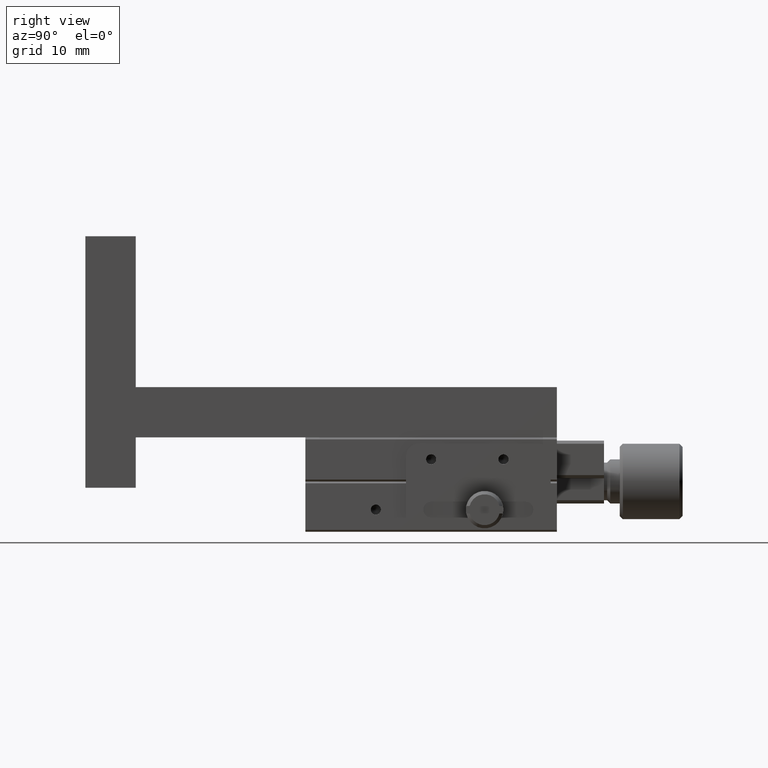
[diagram: clean part render]
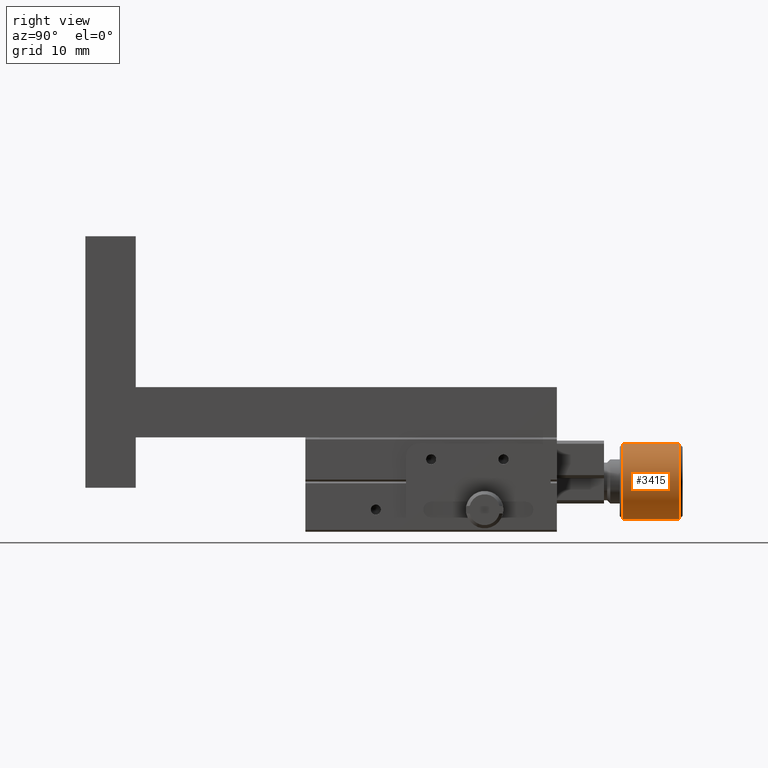
[diagram: same view with one face highlighted and labeled with its STEP entity id]
A machine part, right view. The second image highlights one B-rep face of the part: STEP entity #3415.
In plain terms, the highlighted cylindrical surface (bore or boss wall) has radius 6 mm, axis along (0, 1, 0).
Its self-contained STEP definition (entity closure, byte-faithful):
#1 = CARTESIAN_POINT ( 'NONE',  ( -5.927754503693613231, 89.49967994241787039, -6.071704361601986122 ) ) ;
#32 = CARTESIAN_POINT ( 'NONE',  ( -5.925992331156175297, 89.47290696648462927, -6.060522444643508422 ) ) ;
#75 = CARTESIAN_POINT ( 'NONE',  ( -5.912710089223574883, 89.28009788403207381, -5.980265034043830141 ) ) ;
#82 = ORIENTED_EDGE ( 'NONE', *, *, #2135, .T. ) ;
#146 = CARTESIAN_POINT ( 'NONE',  ( -5.911783107627394784, 89.13227128998488524, -5.974904639685542307 ) ) ;
#227 = CARTESIAN_POINT ( 'NONE',  ( -5.916355304785103186, 89.27785998870660933, -6.000294291334446584 ) ) ;
#273 = CARTESIAN_POINT ( 'NONE',  ( -6.001950903604411636, 87.96309026601777248, -7.067953814614329033 ) ) ;
#353 = CARTESIAN_POINT ( 'NONE',  ( -5.914852837287155829, 89.30729556507249356, -5.992767356128609002 ) ) ;
#359 = ORIENTED_EDGE ( 'NONE', *, *, #6518, .T. ) ;
#388 = CARTESIAN_POINT ( 'NONE',  ( -5.934747352070503190, 89.52856487765008353, -6.117518347447360227 ) ) ;
#425 = CARTESIAN_POINT ( 'NONE',  ( -5.978726218358333178, 89.89961184270403294, -6.478972484376608776 ) ) ;
#466 = CARTESIAN_POINT ( 'NONE',  ( -5.915505863353157423, 89.31539101887378251, -5.996607193960900695 ) ) ;
#501 = CARTESIAN_POINT ( 'NONE',  ( -5.930006737495724600, 89.53437980387064954, -6.086205643435211421 ) ) ;
#536 = CARTESIAN_POINT ( 'NONE',  ( -5.915381821390267802, 89.31773715501745414, -5.995748423078143929 ) ) ;
#578 = CARTESIAN_POINT ( 'NONE',  ( -5.924006292529298889, 89.44311410808374774, -6.048081176741863629 ) ) ;
#617 = CARTESIAN_POINT ( 'NONE',  ( -5.913879973882700369, 89.29508758438022653, -5.987071576474948920 ) ) ;
#650 = CARTESIAN_POINT ( 'NONE',  ( -5.912396572797358196, 89.27599789392749585, -5.978448496103270671 ) ) ;
#719 = CARTESIAN_POINT ( 'NONE',  ( -2.220446049250310123E-16, 85.49999999999727152, -7.000000000000000000 ) ) ;
#800 = CARTESIAN_POINT ( 'NONE',  ( -5.925698735732378708, 89.45918686169703449, -6.058672930851284555 ) ) ;
#831 = DIRECTION ( 'NONE',  ( -0.000000000000000000, -1.000000000000000000, -0.000000000000000000 ) ) ;
#839 = CARTESIAN_POINT ( 'NONE',  ( -5.925466932324986225, 89.45481081909210275, -6.057214851773834674 ) ) ;
#848 = CARTESIAN_POINT ( 'NONE',  ( -5.947418991632147822, 88.35041547480201984, -7.792595317910182118 ) ) ;
#887 = CARTESIAN_POINT ( 'NONE',  ( -5.919467705309717331, 89.29737075696777993, -7.979745929205733113 ) ) ;
#929 = CARTESIAN_POINT ( 'NONE',  ( -5.926639406699675483, 89.44336852453086806, -6.064611201671562313 ) ) ;
#1002 = CARTESIAN_POINT ( 'NONE',  ( -5.925820438914532140, 89.43442881914663189, -6.059436877808523469 ) ) ;
#1038 = CARTESIAN_POINT ( 'NONE',  ( -5.949590827058563569, 89.66950017021075325, -6.223853787383361258 ) ) ;
#1081 = CARTESIAN_POINT ( 'NONE',  ( -5.927048406265220670, 89.44780980102757439, -6.067206275644051239 ) ) ;
#1119 = CARTESIAN_POINT ( 'NONE',  ( -5.912446430450333246, 89.27694976260355020, -5.978737444603495987 ) ) ;
#1154 = CARTESIAN_POINT ( 'NONE',  ( -5.928521077930004601, 89.51143889958734690, -6.076616099046805886 ) ) ;
#1194 = CARTESIAN_POINT ( 'NONE',  ( -5.912034423530095673, 89.27123667878944957, -5.976354820491761366 ) ) ;
#1211 = CARTESIAN_POINT ( 'NONE',  ( -5.909532092605459752, 88.96720463150427349, -8.038558123177246273 ) ) ;
#1234 = CARTESIAN_POINT ( 'NONE',  ( -5.911775984225942970, 89.26766817204126880, -5.974863474232582128 ) ) ;
#1266 = CARTESIAN_POINT ( 'NONE',  ( -5.930032393389730316, 89.53478575168824705, -6.086372155849561594 ) ) ;
#1385 = EDGE_LOOP ( 'NONE', ( #82 ) ) ;
#1417 = CARTESIAN_POINT ( 'NONE',  ( -5.924764114408938021, 89.44134967232197653, -6.052809243971579711 ) ) ;
#1426 = CARTESIAN_POINT ( 'NONE',  ( -5.986625839027112761, 88.05313620724899693, -6.574534434622240298 ) ) ;
#1459 = CARTESIAN_POINT ( 'NONE',  ( -5.924527685702791757, 89.43676609616515805, -6.051331616769585864 ) ) ;
#1505 = CARTESIAN_POINT ( 'NONE',  ( -5.996663716657913312, 90.00471007296381742, -6.799939335904366722 ) ) ;
#1548 = CARTESIAN_POINT ( 'NONE',  ( -5.957675499461705826, 89.73864960324485196, -6.287975515588263953 ) ) ;
#1587 = CARTESIAN_POINT ( 'NONE',  ( -5.953103375691772392, 89.70002839212776280, -6.251257746428968254 ) ) ;
#1621 = CARTESIAN_POINT ( 'NONE',  ( -5.919139929603875139, 89.35894752432898258, -6.018275754720846749 ) ) ;
#1659 = CARTESIAN_POINT ( 'NONE',  ( -5.964768988712976672, 89.79378365724051037, -6.350745880807933119 ) ) ;
#1697 = CARTESIAN_POINT ( 'NONE',  ( -5.911680128088103281, 89.26633338544893093, -5.974309999410310823 ) ) ;
#1731 = B_SPLINE_CURVE_WITH_KNOTS ( 'NONE', 3,
 ( #3582, #3009, #3231, #6668, #7108, #5565, #2482, #1426, #1786, #7029, #273, #4804, #7141, #4126, #1898, #848, #2620, #4948, #7290, #1211, #3808, #887, #3549, #7442, #5027, #4528, #4989, #6751, #2659, #5137, #6826, #2731, #6322, #2090, #7479, #4489, #1505, #3886, #425, #1659, #7368, #1548, #7332, #1587, #6209, #2125, #3921, #1038, #5753, #3382, #2696, #6249, #6861, #3309, #388, #2206, #3994, #4447, #4564, #4412, #6175, #1081, #929, #2243, #1002, #3270, #5676, #2771, #3423, #1621, #3953, #6897, #6284, #5718, #466, #5603, #353, #5868, #4604, #6363, #617, #2390, #2844, #4145, #75, #1769, #650, #1810, #5252, #6940, #6473, #1234, #1697, #7053, #1194, #2959, #3568, #5904, #2993, #1119, #3457, #4717, #4680, #536, #5787, #5212, #5286, #3494, #578, #4108, #6434, #3532, #32, #2886, #4645, #2431, #5827, #7515, #1, #3606, #1154, #5324, #2356, #4753, #7550, #2922, #2320, #7093, #4180, #1851, #7012, #6981, #6509, #1266, #501, #5170, #2281, #1733, #4069, #6398, #2578, #3649, #3720, #3066, #6656, #800, #839, #2038, #6014, #6701, #6086, #6621, #1417, #4366, #5402, #4253, #1459, #227, #146, #5942 ),
 .UNSPECIFIED., .T., .F.,
 ( 4, 3, 3, 3, 3, 3, 3, 3, 3, 3, 3, 3, 3, 3, 3, 3, 3, 3, 3, 3, 3, 3, 3, 3, 3, 3, 3, 3, 3, 3, 3, 3, 3, 3, 3, 3, 3, 3, 3, 3, 3, 3, 3, 3, 3, 3, 3, 3, 3, 3, 3, 3, 3, 4 ),
 ( 0.000000000000000000, 0.01886792452830188607, 0.03773584905660377214, 0.05660377358490566169, 0.07547169811320754429, 0.09433962264150944077, 0.1132075471698113234, 0.1320754716981132060, 0.1509433962264150886, 0.1698113207547169712, 0.1886792452830188815, 0.2075471698113207641, 0.2264150943396226467, 0.2452830188679245293, 0.2641509433962264120, 0.2830188679245282946, 0.3018867924528301772, 0.3207547169811320598, 0.3396226415094339424, 0.3584905660377358250, 0.3773584905660377631, 0.3962264150943396457, 0.4150943396226415283, 0.4339622641509434109, 0.4528301886792452935, 0.4716981132075471761, 0.4905660377358490587, 0.5094339622641509413, 0.5283018867924528239, 0.5471698113207547065, 0.5660377358490565891, 0.5849056603773584717, 0.6037735849056603543, 0.6226415094339622369, 0.6415094339622641195, 0.6603773584905660021, 0.6792452830188678847, 0.6981132075471697673, 0.7169811320754716499, 0.7358490566037735325, 0.7547169811320755262, 0.7735849056603774088, 0.7924528301886792914, 0.8113207547169811740, 0.8301886792452830566, 0.8490566037735849392, 0.8679245283018868218, 0.8867924528301887044, 0.9056603773584905870, 0.9245283018867924696, 0.9433962264150943522, 0.9622641509433962348, 0.9811320754716981174, 1.000000000000000000 ),
 .UNSPECIFIED. ) ;
#1733 = CARTESIAN_POINT ( 'NONE',  ( -5.929995618518642431, 89.53421058396040166, -6.086133248172393095 ) ) ;
#1737 = EDGE_LOOP ( 'NONE', ( #5895 ) ) ;
#1769 = CARTESIAN_POINT ( 'NONE',  ( -5.912548932332599705, 89.27799963586360832, -5.979330601071517926 ) ) ;
#1786 = CARTESIAN_POINT ( 'NONE',  ( -5.996400536888743638, 87.99695910022724377, -6.733142413638204538 ) ) ;
#1810 = CARTESIAN_POINT ( 'NONE',  ( -5.912253080842639896, 89.27409265822376483, -5.977618707102578810 ) ) ;
#1851 = CARTESIAN_POINT ( 'NONE',  ( -5.930071564859463074, 89.53540231512681657, -6.086626453390990399 ) ) ;
#1898 = CARTESIAN_POINT ( 'NONE',  ( -5.961746793765916763, 88.21823113017593698, -7.685083400298293732 ) ) ;
#2038 = CARTESIAN_POINT ( 'NONE',  ( -5.925233412261528443, 89.45035755470044592, -6.055749498162960265 ) ) ;
#2090 = CARTESIAN_POINT ( 'NONE',  ( -5.999526454110229778, 90.02218691254826410, -6.924618792584531946 ) ) ;
#2125 = CARTESIAN_POINT ( 'NONE',  ( -5.951265319209941396, 89.68416366494392378, -6.236821711283084824 ) ) ;
#2135 = EDGE_CURVE ( 'NONE', #5599, #5599, #3986, .T. ) ;
#2206 = CARTESIAN_POINT ( 'NONE',  ( -5.933142580565369251, 89.51228573382374520, -6.106726153169745430 ) ) ;
#2243 = CARTESIAN_POINT ( 'NONE',  ( -5.926229922807103812, 89.43889867183875708, -6.062024039740043335 ) ) ;
#2281 = CARTESIAN_POINT ( 'NONE',  ( -5.929951532638357392, 89.53350176299878171, -6.085847467107182496 ) ) ;
#2320 = CARTESIAN_POINT ( 'NONE',  ( -5.929657636899374751, 89.52897891561757149, -6.083943064454611971 ) ) ;
#2356 = CARTESIAN_POINT ( 'NONE',  ( -5.928902142302225009, 89.51730197488473095, -6.079065195510285236 ) ) ;
#2390 = CARTESIAN_POINT ( 'NONE',  ( -5.913781962016259719, 89.29384544783125932, -5.986499676501777500 ) ) ;
#2431 = CARTESIAN_POINT ( 'NONE',  ( -5.926821642526386213, 89.48546828931347363, -6.065768582288833422 ) ) ;
#2482 = CARTESIAN_POINT ( 'NONE',  ( -5.972984991510273289, 88.14792515253047611, -6.431273096123536703 ) ) ;
#2578 = CARTESIAN_POINT ( 'NONE',  ( -5.928182642071750941, 89.50431168066741350, -6.074427907029061657 ) ) ;
#2620 = CARTESIAN_POINT ( 'NONE',  ( -5.933091189498377993, 88.48259981942810271, -7.900107235522070503 ) ) ;
#2659 = CARTESIAN_POINT ( 'NONE',  ( -5.996735891934690699, 90.00513443739211539, -7.214331900335205994 ) ) ;
#2696 = CARTESIAN_POINT ( 'NONE',  ( -5.945776479217101951, 89.63520337841335106, -6.195094937572774185 ) ) ;
#2731 = CARTESIAN_POINT ( 'NONE',  ( -6.000138023040608282, 90.02595198882154648, -7.007588145129356683 ) ) ;
#2771 = CARTESIAN_POINT ( 'NONE',  ( -5.922971276994429601, 89.40302580083556450, -6.041575812075810070 ) ) ;
#2844 = CARTESIAN_POINT ( 'NONE',  ( -5.913389914550499782, 89.28887690163539048, -5.984212076609094488 ) ) ;
#2886 = CARTESIAN_POINT ( 'NONE',  ( -5.926270186925272299, 89.47710768268957793, -6.062276802186017832 ) ) ;
#2887 = AXIS2_PLACEMENT_3D ( 'NONE', #4677, #4065, #3490 ) ;
#2922 = CARTESIAN_POINT ( 'NONE',  ( -5.929588727784016911, 89.52791116084283374, -6.083497014164199967 ) ) ;
#2959 = CARTESIAN_POINT ( 'NONE',  ( -5.912152323586285618, 89.27287000989063870, -5.977035983064926228 ) ) ;
#2985 = AXIS2_PLACEMENT_3D ( 'NONE', #719, #831, #4817 ) ;
#2993 = CARTESIAN_POINT ( 'NONE',  ( -5.912387678312387429, 89.27613419706527509, -5.978397307910491953 ) ) ;
#3009 = CARTESIAN_POINT ( 'NONE',  ( -5.911820707185849955, 88.83147221190209564, -5.975121499252555424 ) ) ;
#3066 = CARTESIAN_POINT ( 'NONE',  ( -5.926389044705469011, 89.47208332415148391, -6.063025335515929370 ) ) ;
#3231 = CARTESIAN_POINT ( 'NONE',  ( -5.919442044034858519, 88.66868722306664097, -6.016702316807798212 ) ) ;
#3270 = CARTESIAN_POINT ( 'NONE',  ( -5.925253644869814096, 89.42820058321882470, -6.055875096937160862 ) ) ;
#3309 = CARTESIAN_POINT ( 'NONE',  ( -5.937956895080773734, 89.56112316530276019, -6.139102736002588934 ) ) ;
#3382 = CARTESIAN_POINT ( 'NONE',  ( -5.947312731760686866, 89.64919642660809984, -6.206522160516245279 ) ) ;
#3415 = ADVANCED_FACE ( 'NONE', ( #5772, #5124, #6846 ), #4629, .T. ) ;
#3423 = CARTESIAN_POINT ( 'NONE',  ( -5.921013631144906419, 89.38087384721980300, -6.029572920560450022 ) ) ;
#3457 = CARTESIAN_POINT ( 'NONE',  ( -5.912505182588279951, 89.27776532814181110, -5.979077581296500021 ) ) ;
#3490 = DIRECTION ( 'NONE',  ( 0.000000000000000000, 0.000000000000000000, 1.000000000000000000 ) ) ;
#3494 = CARTESIAN_POINT ( 'NONE',  ( -5.922851485892894452, 89.42590298540466165, -6.040894553666899647 ) ) ;
#3532 = CARTESIAN_POINT ( 'NONE',  ( -5.925712324644876183, 89.46868583738674374, -6.058759623926120774 ) ) ;
#3549 = CARTESIAN_POINT ( 'NONE',  ( -5.927868763710515410, 89.46292651379579297, -7.928988082286930528 ) ) ;
#3568 = CARTESIAN_POINT ( 'NONE',  ( -5.912270025693023179, 89.27450224097948706, -5.977716701059972770 ) ) ;
#3582 = CARTESIAN_POINT ( 'NONE',  ( -5.911799641395155014, 88.99999999999998579, -5.974999999999999645 ) ) ;
#3606 = CARTESIAN_POINT ( 'NONE',  ( -5.928139272639908697, 89.50557035652749960, -6.074164745165000490 ) ) ;
#3649 = CARTESIAN_POINT ( 'NONE',  ( -5.927289180145776548, 89.48835194598296994, -6.068741188000513986 ) ) ;
#3720 = CARTESIAN_POINT ( 'NONE',  ( -5.926842449182789352, 89.48037207864074105, -6.065897828486240151 ) ) ;
#3808 = CARTESIAN_POINT ( 'NONE',  ( -5.911066646908919253, 89.13181500013976688, -8.030503776124536586 ) ) ;
#3886 = CARTESIAN_POINT ( 'NONE',  ( -5.990951892119795730, 89.96992064794513055, -6.628731811834200904 ) ) ;
#3921 = CARTESIAN_POINT ( 'NONE',  ( -5.950345058548464294, 89.67616192756251792, -6.229645517410363986 ) ) ;
#3953 = CARTESIAN_POINT ( 'NONE',  ( -5.918203078833359498, 89.34798436288356527, -6.012627171801045556 ) ) ;
#3986 = CIRCLE ( 'NONE', #2887, 5.999999999999990230 ) ;
#3994 = CARTESIAN_POINT ( 'NONE',  ( -5.931526587199106970, 89.49554937087107476, -6.096060815487174267 ) ) ;
#4065 = DIRECTION ( 'NONE',  ( -0.000000000000000000, -1.000000000000000000, -0.000000000000000000 ) ) ;
#4069 = CARTESIAN_POINT ( 'NONE',  ( -5.929890484518558935, 89.53252450427187625, -6.085451564095077259 ) ) ;
#4108 = CARTESIAN_POINT ( 'NONE',  ( -5.924583695847501552, 89.45171966942331210, -6.051674488279346065 ) ) ;
#4126 = CARTESIAN_POINT ( 'NONE',  ( -5.976616166364220106, 88.12111642980569570, -7.553082205511291392 ) ) ;
#4145 = CARTESIAN_POINT ( 'NONE',  ( -5.913032403005522575, 89.28429438036900478, -5.982133899988455461 ) ) ;
#4180 = CARTESIAN_POINT ( 'NONE',  ( -5.930045136863169475, 89.53499159060280022, -6.086454869804054368 ) ) ;
#4253 = CARTESIAN_POINT ( 'NONE',  ( -5.924655379154630808, 89.43924900409419365, -6.052129074979510470 ) ) ;
#4366 = CARTESIAN_POINT ( 'NONE',  ( -5.924705088341402082, 89.44020739805402798, -6.052440178046063046 ) ) ;
#4412 = CARTESIAN_POINT ( 'NONE',  ( -5.928273860546992680, 89.46104790193156475, -6.075015241211332295 ) ) ;
#4447 = CARTESIAN_POINT ( 'NONE',  ( -5.929901376423297954, 89.47835578879211482, -6.085522189502142965 ) ) ;
#4489 = CARTESIAN_POINT ( 'NONE',  ( -5.998091672792443596, 90.01340742921848914, -6.842741216921908176 ) ) ;
#4528 = CARTESIAN_POINT ( 'NONE',  ( -5.970587846337599203, 89.84416381944187435, -7.605390972667733784 ) ) ;
#4564 = CARTESIAN_POINT ( 'NONE',  ( -5.929088771035393890, 89.46975899775262064, -6.080252876509626425 ) ) ;
#4604 = CARTESIAN_POINT ( 'NONE',  ( -5.914421840886139314, 89.30190917231185210, -5.990240480089989106 ) ) ;
#4629 = CYLINDRICAL_SURFACE ( 'NONE', #5545, 5.999999999999990230 ) ;
#4645 = CARTESIAN_POINT ( 'NONE',  ( -5.926545914725829256, 89.48128798600151868, -6.064022692237426071 ) ) ;
#4677 = CARTESIAN_POINT ( 'NONE',  ( -2.220446049250310123E-16, 94.50000000000000000, -7.000000000000000000 ) ) ;
#4680 = CARTESIAN_POINT ( 'NONE',  ( -5.912622538639309866, 89.27939563420910929, -5.979757521187075930 ) ) ;
#4717 = CARTESIAN_POINT ( 'NONE',  ( -5.912450083467374995, 89.27699928915859573, -5.978758089818883903 ) ) ;
#4753 = CARTESIAN_POINT ( 'NONE',  ( -5.929091567377636984, 89.52022531088978496, -6.080286356711347651 ) ) ;
#4804 = CARTESIAN_POINT ( 'NONE',  ( -5.997657139558794981, 87.98796970994423816, -7.232270450980727183 ) ) ;
#4817 = DIRECTION ( 'NONE',  ( 0.000000000000000000, 0.000000000000000000, 1.000000000000000000 ) ) ;
#4948 = CARTESIAN_POINT ( 'NONE',  ( -5.921000943403588401, 88.63465023829118650, -7.971040862664967364 ) ) ;
#4989 = CARTESIAN_POINT ( 'NONE',  ( -5.984526461091872918, 89.92968201493224001, -7.461043513095797053 ) ) ;
#5027 = CARTESIAN_POINT ( 'NONE',  ( -5.956087364729916622, 89.72498392830151204, -7.724584918214913110 ) ) ;
#5121 = EDGE_LOOP ( 'NONE', ( #359 ) ) ;
#5124 = FACE_BOUND ( 'NONE', #5121, .T. ) ;
#5137 = CARTESIAN_POINT ( 'NONE',  ( -5.999124043127381789, 90.01977037805696114, -7.131780943644871584 ) ) ;
#5170 = CARTESIAN_POINT ( 'NONE',  ( -5.929979135067041440, 89.53394078343471563, -6.086026555271196514 ) ) ;
#5212 = CARTESIAN_POINT ( 'NONE',  ( -5.920434912600829769, 89.39050092118395696, -6.026115794533512648 ) ) ;
#5252 = CARTESIAN_POINT ( 'NONE',  ( -5.912109588887921596, 89.27218742252003381, -5.976788918101886061 ) ) ;
#5286 = CARTESIAN_POINT ( 'NONE',  ( -5.921661532537040529, 89.40836525643808841, -6.033572659994594467 ) ) ;
#5324 = CARTESIAN_POINT ( 'NONE',  ( -5.928711980575052110, 89.51437317111727054, -6.077841775987708139 ) ) ;
#5402 = CARTESIAN_POINT ( 'NONE',  ( -5.924646062273867031, 89.43906512378607943, -6.052071112120546381 ) ) ;
#5512 = CARTESIAN_POINT ( 'NONE',  ( -2.220446049250310123E-16, 85.49999999999727152, -1.000000000028194558 ) ) ;
#5545 = AXIS2_PLACEMENT_3D ( 'NONE', #6998, #6965, #6269 ) ;
#5565 = CARTESIAN_POINT ( 'NONE',  ( -5.959344143993432930, 88.24271409781195530, -6.288011757624833109 ) ) ;
#5599 = VERTEX_POINT ( 'NONE', #6784 ) ;
#5603 = CARTESIAN_POINT ( 'NONE',  ( -5.915070512642489398, 89.30999404967292321, -5.994047302072705641 ) ) ;
#5676 = CARTESIAN_POINT ( 'NONE',  ( -5.925000048439216016, 89.42540338517623866, -6.054286287508122477 ) ) ;
#5718 = CARTESIAN_POINT ( 'NONE',  ( -5.915946991966861468, 89.32080208999495596, -5.999211111395702289 ) ) ;
#5753 = CARTESIAN_POINT ( 'NONE',  ( -5.948831461959271039, 89.66273225567653071, -6.218076578427655932 ) ) ;
#5772 = FACE_OUTER_BOUND ( 'NONE', #1737, .T. ) ;
#5787 = CARTESIAN_POINT ( 'NONE',  ( -5.917981672728408249, 89.35477225067572249, -6.011202063611349899 ) ) ;
#5827 = CARTESIAN_POINT ( 'NONE',  ( -5.927172853320903378, 89.49081151467878215, -6.068000252715788356 ) ) ;
#5868 = CARTESIAN_POINT ( 'NONE',  ( -5.914636606315414546, 89.30460060595213179, -5.991498416579349673 ) ) ;
#5895 = ORIENTED_EDGE ( 'NONE', *, *, #6962, .F. ) ;
#5904 = CARTESIAN_POINT ( 'NONE',  ( -5.912328876746392403, 89.27531835652391123, -5.978057060057497374 ) ) ;
#5942 = CARTESIAN_POINT ( 'NONE',  ( -5.911799641395155014, 88.99999999999998579, -5.974999999999999645 ) ) ;
#6014 = CARTESIAN_POINT ( 'NONE',  ( -5.925116652229799108, 89.44813092250461750, -6.055016821357523504 ) ) ;
#6034 = CIRCLE ( 'NONE', #2985, 5.999999999971805664 ) ;
#6086 = CARTESIAN_POINT ( 'NONE',  ( -5.924881842621759986, 89.44361974177286356, -6.053546012227291939 ) ) ;
#6124 = CARTESIAN_POINT ( 'NONE',  ( -5.911799641395155014, 88.99999999999998579, -5.974999999999999645 ) ) ;
#6175 = CARTESIAN_POINT ( 'NONE',  ( -5.927456891025811636, 89.45222250132890451, -6.069809264166478258 ) ) ;
#6209 = CARTESIAN_POINT ( 'NONE',  ( -5.952185579871418497, 89.69216540232534385, -6.243997905155804773 ) ) ;
#6249 = CARTESIAN_POINT ( 'NONE',  ( -5.944224852309241136, 89.62075311109228437, -6.183794814284377495 ) ) ;
#6269 = DIRECTION ( 'NONE',  ( 0.000000000000000000, 0.000000000000000000, 1.000000000000000000 ) ) ;
#6284 = CARTESIAN_POINT ( 'NONE',  ( -5.916393724790632191, 89.32622726303642935, -6.001859081462982637 ) ) ;
#6322 = CARTESIAN_POINT ( 'NONE',  ( -6.000048016772807635, 90.02538380903763482, -6.966129523161797898 ) ) ;
#6363 = CARTESIAN_POINT ( 'NONE',  ( -5.914207075456863194, 89.29921773867158663, -5.988982543600629427 ) ) ;
#6398 = CARTESIAN_POINT ( 'NONE',  ( -5.929049412517897188, 89.51903586676371560, -6.079998091476549682 ) ) ;
#6434 = CARTESIAN_POINT ( 'NONE',  ( -5.925152311622278845, 89.46024357919097270, -6.055233982491346367 ) ) ;
#6473 = CARTESIAN_POINT ( 'NONE',  ( -5.911849269611487045, 89.26866646980965925, -5.975286277346683939 ) ) ;
#6509 = CARTESIAN_POINT ( 'NONE',  ( -5.930056105927395294, 89.53515862688752236, -6.086526092023911261 ) ) ;
#6518 = EDGE_CURVE ( 'NONE', #7393, #7393, #1731, .T. ) ;
#6621 = CARTESIAN_POINT ( 'NONE',  ( -5.924823032416868251, 89.44248712022826453, -6.053177855381185246 ) ) ;
#6656 = CARTESIAN_POINT ( 'NONE',  ( -5.925928838723408809, 89.46348568251518429, -6.060123732406165864 ) ) ;
#6668 = CARTESIAN_POINT ( 'NONE',  ( -5.931726055630091921, 88.51674691269118966, -6.097433658416758107 ) ) ;
#6701 = CARTESIAN_POINT ( 'NONE',  ( -5.924999463031543456, 89.44588498486209005, -6.054282325919506214 ) ) ;
#6739 = VERTEX_POINT ( 'NONE', #5512 ) ;
#6751 = CARTESIAN_POINT ( 'NONE',  ( -5.992666081653751142, 89.97998362990549026, -7.296569104588736643 ) ) ;
#6784 = CARTESIAN_POINT ( 'NONE',  ( -2.220446049250310123E-16, 94.50000000000000000, -1.000000000000009548 ) ) ;
#6826 = CARTESIAN_POINT ( 'NONE',  ( -5.999800029736198859, 90.02389145190001329, -7.048985744634528317 ) ) ;
#6846 = FACE_OUTER_BOUND ( 'NONE', #1385, .T. ) ;
#6861 = CARTESIAN_POINT ( 'NONE',  ( -5.941121598493520395, 89.59185257645015099, -6.161194567707582337 ) ) ;
#6897 = CARTESIAN_POINT ( 'NONE',  ( -5.917287190438173639, 89.33707760911939033, -6.007155021597545108 ) ) ;
#6940 = CARTESIAN_POINT ( 'NONE',  ( -5.911885912304258639, 89.26916561869386157, -5.975497678903733956 ) ) ;
#6962 = EDGE_CURVE ( 'NONE', #6739, #6739, #6034, .T. ) ;
#6965 = DIRECTION ( 'NONE',  ( 0.000000000000000000, 1.000000000000000000, 0.000000000000000000 ) ) ;
#6981 = CARTESIAN_POINT ( 'NONE',  ( -5.930103531002722583, 89.53590437728604456, -6.086833964372608818 ) ) ;
#6998 = CARTESIAN_POINT ( 'NONE',  ( -2.220446049250310123E-16, 89.00000000000000000, -7.000000000000000000 ) ) ;
#7012 = CARTESIAN_POINT ( 'NONE',  ( -5.930084778857610317, 89.53560767738882475, -6.086712245184457970 ) ) ;
#7029 = CARTESIAN_POINT ( 'NONE',  ( -5.999175720246577193, 87.98002468312250812, -6.900548114126267230 ) ) ;
#7053 = CARTESIAN_POINT ( 'NONE',  ( -5.911916325049431542, 89.26960224767593388, -5.975673213464611777 ) ) ;
#7093 = CARTESIAN_POINT ( 'NONE',  ( -5.929795455130091320, 89.53111442516708962, -6.084835165035437754 ) ) ;
#7108 = CARTESIAN_POINT ( 'NONE',  ( -5.944010067225324434, 88.36480660231573836, -6.178165000025717113 ) ) ;
#7141 = CARTESIAN_POINT ( 'NONE',  ( -5.987136652961507544, 88.05454306987496693, -7.392676328246009732 ) ) ;
#7290 = CARTESIAN_POINT ( 'NONE',  ( -5.915266518004524521, 88.80092743489773000, -8.004799492921106818 ) ) ;
#7332 = CARTESIAN_POINT ( 'NONE',  ( -5.954017800445758901, 89.70775263435116642, -6.258601300260828282 ) ) ;
#7368 = CARTESIAN_POINT ( 'NONE',  ( -5.961279681301637545, 89.76732661087463327, -6.318689229915763761 ) ) ;
#7393 = VERTEX_POINT ( 'NONE', #6124 ) ;
#7442 = CARTESIAN_POINT ( 'NONE',  ( -5.941586883122234930, 89.60580403716114972, -7.843778863762092435 ) ) ;
#7479 = CARTESIAN_POINT ( 'NONE',  ( -5.999004891447651922, 90.01899001605889339, -6.883108062007266881 ) ) ;
#7515 = CARTESIAN_POINT ( 'NONE',  ( -5.927366736778473033, 89.49376765725847349, -6.069234955677853982 ) ) ;
#7550 = CARTESIAN_POINT ( 'NONE',  ( -5.929280992453048960, 89.52314864689482476, -6.081507517912410954 ) ) ;